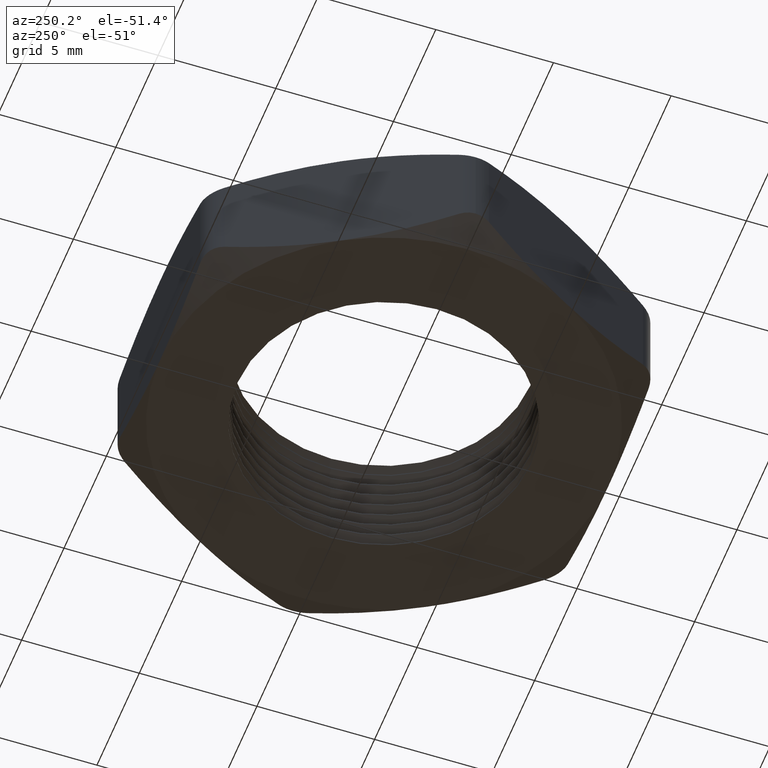
[diagram: clean part render]
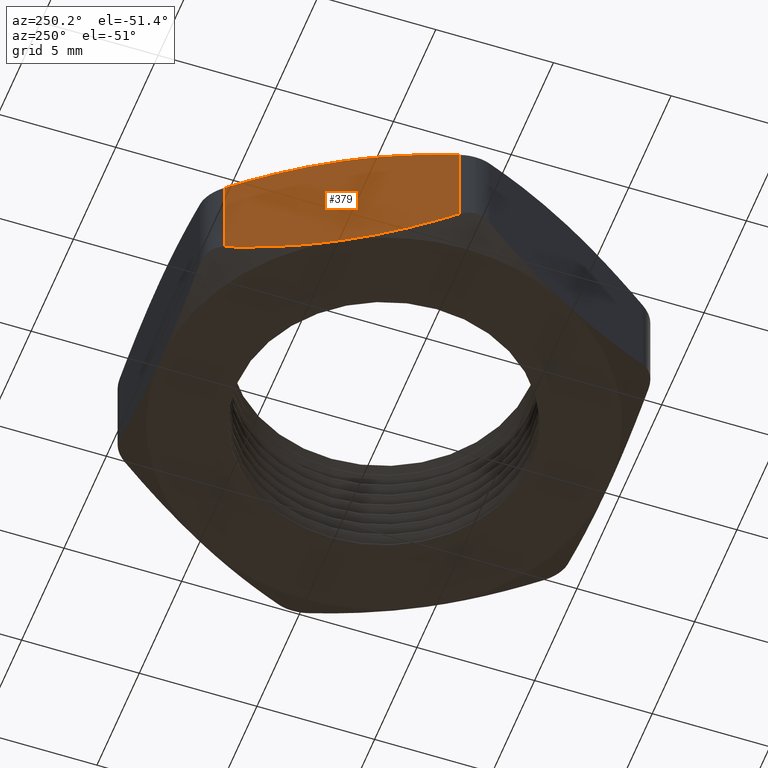
[diagram: same view with one face highlighted and labeled with its STEP entity id]
A machine part, auxiliary view. The second image highlights one B-rep face of the part: STEP entity #379.
In plain terms, the highlighted planar face has unit normal (0.866, -0.5, 0).
Its self-contained STEP definition (entity closure, byte-faithful):
#8 = VERTEX_POINT ( 'NONE', #757 ) ;
#18 = EDGE_CURVE ( 'NONE', #8, #108, #738, .T. ) ;
#108 = VERTEX_POINT ( 'NONE', #867 ) ;
#379 = ADVANCED_FACE ( 'NONE', ( #1592 ), #1591, .F. ) ;
#380 = EDGE_LOOP ( 'NONE', ( #381, #382, #385, #404, #407, #410 ) ) ;
#381 = ORIENTED_EDGE ( 'NONE', *, *, #18, .F. ) ;
#382 = ORIENTED_EDGE ( 'NONE', *, *, #383, .T. ) ;
#383 = EDGE_CURVE ( 'NONE', #8, #384, #1586, .T. ) ;
#384 = VERTEX_POINT ( 'NONE', #1582 ) ;
#385 = ORIENTED_EDGE ( 'NONE', *, *, #402, .F. ) ;
#402 = EDGE_CURVE ( 'NONE', #403, #384, #1695, .T. ) ;
#403 = VERTEX_POINT ( 'NONE', #1694 ) ;
#404 = ORIENTED_EDGE ( 'NONE', *, *, #405, .F. ) ;
#405 = EDGE_CURVE ( 'NONE', #406, #403, #1685, .T. ) ;
#406 = VERTEX_POINT ( 'NONE', #1684 ) ;
#407 = ORIENTED_EDGE ( 'NONE', *, *, #408, .T. ) ;
#408 = EDGE_CURVE ( 'NONE', #406, #409, #1657, .T. ) ;
#409 = VERTEX_POINT ( 'NONE', #1653 ) ;
#410 = ORIENTED_EDGE ( 'NONE', *, *, #411, .F. ) ;
#411 = EDGE_CURVE ( 'NONE', #108, #409, #1650, .T. ) ;
#729 = CARTESIAN_POINT ( 'NONE',  ( -0.3247595264191646100, 0.1875000000000000600, 0.0000000000000000000 ) ) ;
#730 = CARTESIAN_POINT ( 'NONE',  ( -0.3407024386049761200, 0.1598860660735655600, -2.478405064564551100E-016 ) ) ;
#731 = CARTESIAN_POINT ( 'NONE',  ( -0.3564745969185512700, 0.1325678865294334400, 0.002377381589201906900 ) ) ;
#732 = CARTESIAN_POINT ( 'NONE',  ( -0.3877259324843671000, 0.07843898552505623700, 0.01121127792037121200 ) ) ;
#733 = CARTESIAN_POINT ( 'NONE',  ( -0.4032065323880963900, 0.05162579996015098000, 0.01764798529039914000 ) ) ;
#734 = CARTESIAN_POINT ( 'NONE',  ( -0.4185789451624684600, 0.02500000000001798700, 0.02559096649278403200 ) ) ;
#738 = B_SPLINE_CURVE_WITH_KNOTS ( 'NONE', 3,
 ( #734, #733, #732, #731, #730, #729 ),
 .UNSPECIFIED., .F., .F.,
 ( 4, 2, 4 ),
 ( 0.0007545642487503562400, 0.003159577114513164800, 0.005564589980275973200 ),
 .UNSPECIFIED. ) ;
#757 = CARTESIAN_POINT ( 'NONE',  ( -0.4185789451624684600, 0.02500000000001798700, 0.02559096649278403200 ) ) ;
#867 = CARTESIAN_POINT ( 'NONE',  ( -0.3247595264191646100, 0.1875000000000000600, 0.0000000000000000000 ) ) ;
#1582 = CARTESIAN_POINT ( 'NONE',  ( -0.4185789451624788400, 0.02499999999999998100, 0.1744090335072108200 ) ) ;
#1583 = DIRECTION ( 'NONE',  ( 0.0000000000000000000, 0.0000000000000000000, 1.000000000000000000 ) ) ;
#1584 = VECTOR ( 'NONE', #1583, 39.37007874015748100 ) ;
#1585 = CARTESIAN_POINT ( 'NONE',  ( -0.4185789451624788400, 0.02500000000000000500, 0.2000000000000000100 ) ) ;
#1586 = LINE ( 'NONE', #1585, #1584 ) ;
#1587 = DIRECTION ( 'NONE',  ( 0.5000000000000000000, 0.8660254037844386000, 0.0000000000000000000 ) ) ;
#1588 = DIRECTION ( 'NONE',  ( 0.8660254037844387100, -0.5000000000000001100, 0.0000000000000000000 ) ) ;
#1589 = CARTESIAN_POINT ( 'NONE',  ( -0.2165063509461097000, 0.3750000000000001100, 0.2000000000000000100 ) ) ;
#1590 = AXIS2_PLACEMENT_3D ( 'NONE', #1589, #1588, #1587 ) ;
#1591 = PLANE ( 'NONE',  #1590 ) ;
#1592 = FACE_OUTER_BOUND ( 'NONE', #380, .T. ) ;
#1599 = CARTESIAN_POINT ( 'NONE',  ( -0.3247595264191646700, 0.1875000000000001100, 0.2000000000000000100 ) ) ;
#1600 = CARTESIAN_POINT ( 'NONE',  ( -0.3088166142333529900, 0.2151139339264345800, 0.2000000000000002900 ) ) ;
#1601 = CARTESIAN_POINT ( 'NONE',  ( -0.2930444559197776800, 0.2424321134705667000, 0.1976226184107980600 ) ) ;
#1602 = CARTESIAN_POINT ( 'NONE',  ( -0.2617931203539621300, 0.2965610144749439300, 0.1887887220796288800 ) ) ;
#1603 = CARTESIAN_POINT ( 'NONE',  ( -0.2463125204502326400, 0.3233742000398489000, 0.1823520147096008300 ) ) ;
#1604 = CARTESIAN_POINT ( 'NONE',  ( -0.2309401076758607300, 0.3499999999999821000, 0.1744090335072159800 ) ) ;
#1640 = CARTESIAN_POINT ( 'NONE',  ( -0.2309401076758503500, 0.3500000000000001400, 0.02559096649278918400 ) ) ;
#1641 = CARTESIAN_POINT ( 'NONE',  ( -0.2462782553154248800, 0.3234335489942643500, 0.01766569020931173600 ) ) ;
#1642 = CARTESIAN_POINT ( 'NONE',  ( -0.2617398379950046600, 0.2966533022278051200, 0.01123079092868728300 ) ) ;
#1643 = CARTESIAN_POINT ( 'NONE',  ( -0.2851822622156475800, 0.2560498324250685100, 0.004597593372874834800 ) ) ;
#1644 = CARTESIAN_POINT ( 'NONE',  ( -0.2930380967724340300, 0.2424431278368589000, 0.002889938155333168500 ) ) ;
#1645 = CARTESIAN_POINT ( 'NONE',  ( -0.3088421535193918700, 0.2150696985854264100, 0.0005901327189829393100 ) ) ;
#1646 = CARTESIAN_POINT ( 'NONE',  ( -0.3168206163786563300, 0.2012505955468789100, -2.497079806708740700E-016 ) ) ;
#1647 = CARTESIAN_POINT ( 'NONE',  ( -0.3247595264191646100, 0.1875000000000000600, 0.0000000000000000000 ) ) ;
#1650 = B_SPLINE_CURVE_WITH_KNOTS ( 'NONE', 3,
 ( #1647, #1646, #1645, #1644, #1643, #1642, #1641, #1640 ),
 .UNSPECIFIED., .F., .F.,
 ( 4, 2, 2, 4 ),
 ( 0.005564589980275973200, 0.006762186791010960600, 0.007959783601745948000, 0.01035497722321592300 ),
 .UNSPECIFIED. ) ;
#1653 = CARTESIAN_POINT ( 'NONE',  ( -0.2309401076758503500, 0.3500000000000001400, 0.02559096649278918400 ) ) ;
#1654 = DIRECTION ( 'NONE',  ( 0.0000000000000000000, 0.0000000000000000000, -1.000000000000000000 ) ) ;
#1655 = VECTOR ( 'NONE', #1654, 39.37007874015748100 ) ;
#1656 = CARTESIAN_POINT ( 'NONE',  ( -0.2309401076758503800, 0.3500000000000000900, 0.2000000000000000100 ) ) ;
#1657 = LINE ( 'NONE', #1656, #1655 ) ;
#1684 = CARTESIAN_POINT ( 'NONE',  ( -0.2309401076758607300, 0.3499999999999821000, 0.1744090335072159800 ) ) ;
#1685 = B_SPLINE_CURVE_WITH_KNOTS ( 'NONE', 3,
 ( #1604, #1603, #1602, #1601, #1600, #1599 ),
 .UNSPECIFIED., .F., .F.,
 ( 4, 2, 4 ),
 ( 0.0007545642487503554900, 0.003159577114513163500, 0.005564589980275971500 ),
 .UNSPECIFIED. ) ;
#1686 = CARTESIAN_POINT ( 'NONE',  ( -0.4185789451624788400, 0.02499999999999998100, 0.1744090335072108200 ) ) ;
#1687 = CARTESIAN_POINT ( 'NONE',  ( -0.4032407975229041500, 0.05156645100573588300, 0.1823343097906883500 ) ) ;
#1688 = CARTESIAN_POINT ( 'NONE',  ( -0.3877792148433243900, 0.07834669777219509200, 0.1887692090713127300 ) ) ;
#1689 = CARTESIAN_POINT ( 'NONE',  ( -0.3643367906226815900, 0.1189501675749316300, 0.1954024066271251900 ) ) ;
#1690 = CARTESIAN_POINT ( 'NONE',  ( -0.3564809560658949200, 0.1325568721631412400, 0.1971100618446669000 ) ) ;
#1691 = CARTESIAN_POINT ( 'NONE',  ( -0.3406768993189373000, 0.1599303014145737900, 0.1994098672810171200 ) ) ;
#1692 = CARTESIAN_POINT ( 'NONE',  ( -0.3326984364596727300, 0.1737494044531212600, 0.2000000000000002300 ) ) ;
#1693 = CARTESIAN_POINT ( 'NONE',  ( -0.3247595264191646700, 0.1875000000000001100, 0.2000000000000000100 ) ) ;
#1694 = CARTESIAN_POINT ( 'NONE',  ( -0.3247595264191646700, 0.1875000000000001100, 0.2000000000000000100 ) ) ;
#1695 = B_SPLINE_CURVE_WITH_KNOTS ( 'NONE', 3,
 ( #1693, #1692, #1691, #1690, #1689, #1688, #1687, #1686 ),
 .UNSPECIFIED., .F., .F.,
 ( 4, 2, 2, 4 ),
 ( 0.005564589980275971500, 0.006762186791010958000, 0.007959783601745942800, 0.01035497722321591900 ),
 .UNSPECIFIED. ) ;